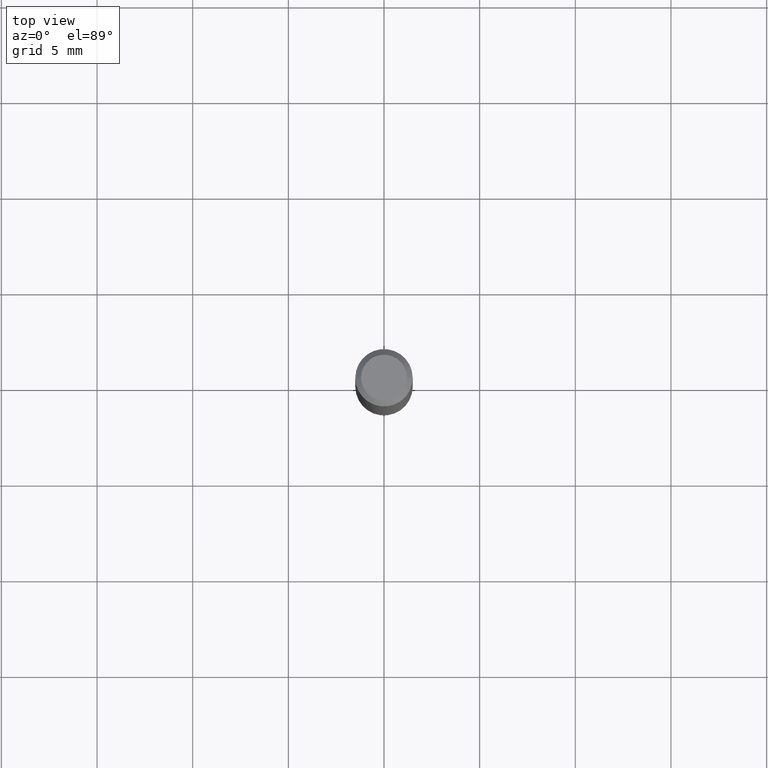
[diagram: clean part render]
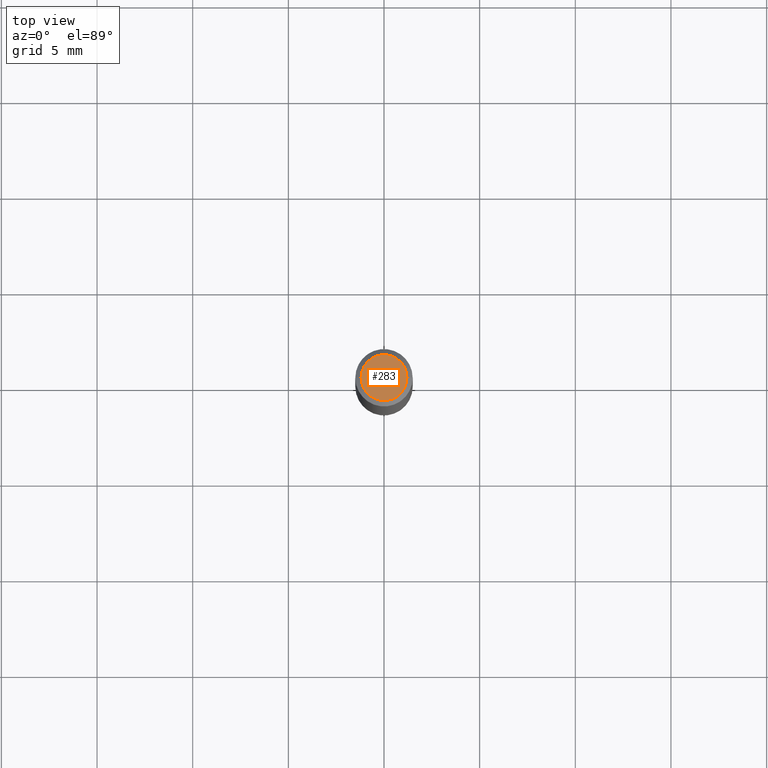
[diagram: same view with one face highlighted and labeled with its STEP entity id]
A machine part, top view. The second image highlights one B-rep face of the part: STEP entity #283.
In plain terms, the highlighted planar face has unit normal (0, -0, -1).
Its self-contained STEP definition (entity closure, byte-faithful):
#14 = DIRECTION ( 'NONE',  ( 1.000000000000000000, -6.982962677686266711E-15, 4.876185090822587894E-29 ) ) ;
#32 = VERTEX_POINT ( 'NONE', #186 ) ;
#50 = CARTESIAN_POINT ( 'NONE',  ( 8.265746106709734507E-48, -1.180129479067563789E-33, -3.380025165646692144E-19 ) ) ;
#57 = FACE_OUTER_BOUND ( 'NONE', #395, .T. ) ;
#58 = CIRCLE ( 'NONE', #268, 0.04724000000000000421 ) ;
#125 = VERTEX_POINT ( 'NONE', #390 ) ;
#144 = CIRCLE ( 'NONE', #225, 0.04724000000000000421 ) ;
#161 = DIRECTION ( 'NONE',  ( 2.438088387897960049E-29, -3.491481338843145188E-15, -1.000000000000000000 ) ) ;
#164 = AXIS2_PLACEMENT_3D ( 'NONE', #382, #161, #203 ) ;
#186 = CARTESIAN_POINT ( 'NONE',  ( 0.04724000000000000421, -3.852183633974369345E-16, -3.380025165621689721E-19 ) ) ;
#196 = ORIENTED_EDGE ( 'NONE', *, *, #403, .T. ) ;
#203 = DIRECTION ( 'NONE',  ( -1.000000000000000000, 6.982962677686265922E-15, -4.876176775795935793E-29 ) ) ;
#225 = AXIS2_PLACEMENT_3D ( 'NONE', #478, #400, #303 ) ;
#245 = DIRECTION ( 'NONE',  ( -2.445468806185136597E-29, 3.491481338843145583E-15, 1.000000000000000000 ) ) ;
#268 = AXIS2_PLACEMENT_3D ( 'NONE', #50, #245, #14 ) ;
#283 = ADVANCED_FACE ( 'NONE', ( #57 ), #412, .F. ) ;
#303 = DIRECTION ( 'NONE',  ( 1.000000000000000000, -6.982962677686266711E-15, 4.876185090822587894E-29 ) ) ;
#374 = EDGE_CURVE ( 'NONE', #125, #32, #58, .T. ) ;
#382 = CARTESIAN_POINT ( 'NONE',  ( 4.132873053354867254E-48, -5.900647395337818946E-34, -1.690012582823346072E-19 ) ) ;
#386 = ORIENTED_EDGE ( 'NONE', *, *, #374, .T. ) ;
#390 = CARTESIAN_POINT ( 'NONE',  ( -0.04724000000000000421, 3.504923541997677355E-16, -3.380025165670481712E-19 ) ) ;
#395 = EDGE_LOOP ( 'NONE', ( #386, #196 ) ) ;
#400 = DIRECTION ( 'NONE',  ( -2.445468806185136597E-29, 3.491481338843145583E-15, 1.000000000000000000 ) ) ;
#403 = EDGE_CURVE ( 'NONE', #32, #125, #144, .T. ) ;
#412 = PLANE ( 'NONE',  #164 ) ;
#478 = CARTESIAN_POINT ( 'NONE',  ( 8.265746106709734507E-48, -1.180129479067563789E-33, -3.380025165646692144E-19 ) ) ;